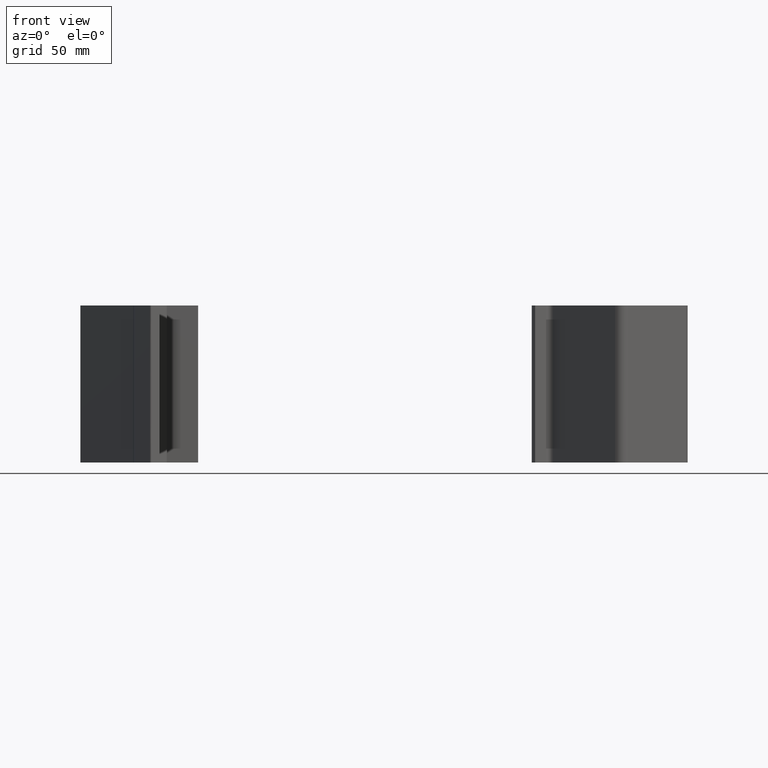
[diagram: clean part render]
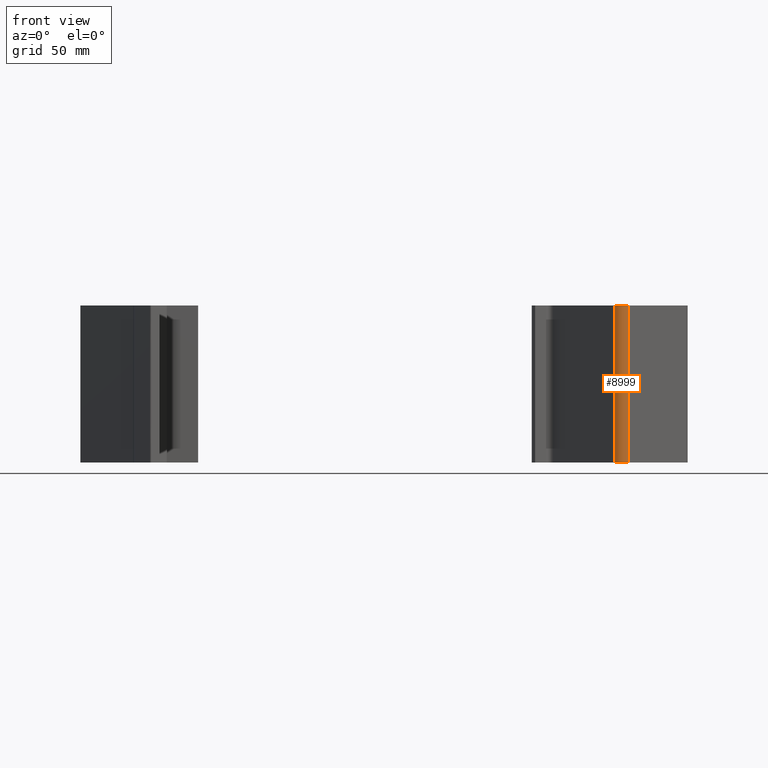
[diagram: same view with one face highlighted and labeled with its STEP entity id]
A machine part, front view. The second image highlights one B-rep face of the part: STEP entity #8999.
In plain terms, the highlighted cylindrical surface (edge-blend (fillet) strip) has radius 6 mm, axis along (-0, 0, -1).
Its self-contained STEP definition (entity closure, byte-faithful):
#8354=DIRECTION('',(1.E0,0.E0,0.E0));
#8355=VECTOR('',#8354,1.E2);
#8356=CARTESIAN_POINT('',(0.E0,-6.5E1,-6.E0));
#8357=LINE('',#8356,#8355);
#8361=CARTESIAN_POINT('',(0.E0,-5.9E1,-6.E0));
#8362=DIRECTION('',(-1.E0,0.E0,0.E0));
#8363=DIRECTION('',(0.E0,-1.E0,0.E0));
#8364=AXIS2_PLACEMENT_3D('',#8361,#8362,#8363);
#8369=DIRECTION('',(1.E0,0.E0,0.E0));
#8370=VECTOR('',#8369,1.E2);
#8371=CARTESIAN_POINT('',(0.E0,-5.9E1,0.E0));
#8372=LINE('',#8371,#8370);
#8376=CARTESIAN_POINT('',(1.E2,-5.9E1,-6.E0));
#8377=DIRECTION('',(-1.E0,0.E0,0.E0));
#8378=DIRECTION('',(0.E0,-1.E0,0.E0));
#8379=AXIS2_PLACEMENT_3D('',#8376,#8377,#8378);
#8653=CARTESIAN_POINT('',(0.E0,-6.5E1,-6.E0));
#8654=CARTESIAN_POINT('',(1.E2,-6.5E1,-6.E0));
#8655=VERTEX_POINT('',#8653);
#8656=VERTEX_POINT('',#8654);
#8657=CARTESIAN_POINT('',(0.E0,-5.9E1,0.E0));
#8658=CARTESIAN_POINT('',(1.E2,-5.9E1,0.E0));
#8659=VERTEX_POINT('',#8657);
#8660=VERTEX_POINT('',#8658);
#8985=CARTESIAN_POINT('',(0.E0,-5.9E1,-6.E0));
#8986=DIRECTION('',(-1.E0,0.E0,0.E0));
#8987=DIRECTION('',(0.E0,-1.E0,0.E0));
#8988=AXIS2_PLACEMENT_3D('',#8985,#8986,#8987);
#8989=CYLINDRICAL_SURFACE('',#8988,6.E0);
#8991=ORIENTED_EDGE('',*,*,#8990,.F.);
#8992=ORIENTED_EDGE('',*,*,#8975,.T.);
#8994=ORIENTED_EDGE('',*,*,#8993,.T.);
#8996=ORIENTED_EDGE('',*,*,#8995,.F.);
#8997=EDGE_LOOP('',(#8991,#8992,#8994,#8996));
#8998=FACE_OUTER_BOUND('',#8997,.F.);
#8999=ADVANCED_FACE('',(#8998),#8989,.T.);
#8365=CIRCLE('',#8364,6.E0);
#8380=CIRCLE('',#8379,6.E0);
#8975=EDGE_CURVE('',#8655,#8659,#8365,.T.);
#8990=EDGE_CURVE('',#8655,#8656,#8357,.T.);
#8993=EDGE_CURVE('',#8659,#8660,#8372,.T.);
#8995=EDGE_CURVE('',#8656,#8660,#8380,.T.);